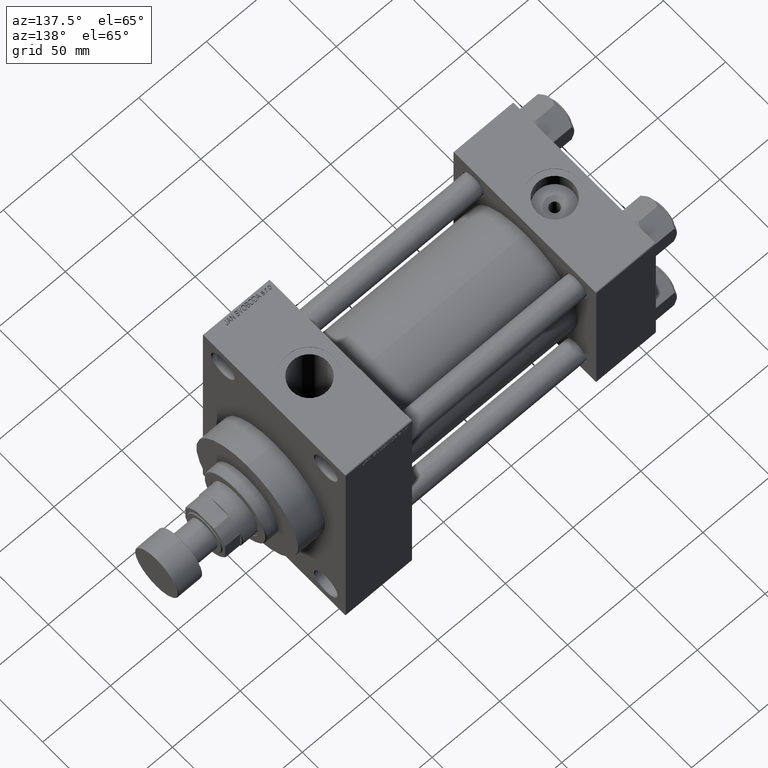
[diagram: clean part render]
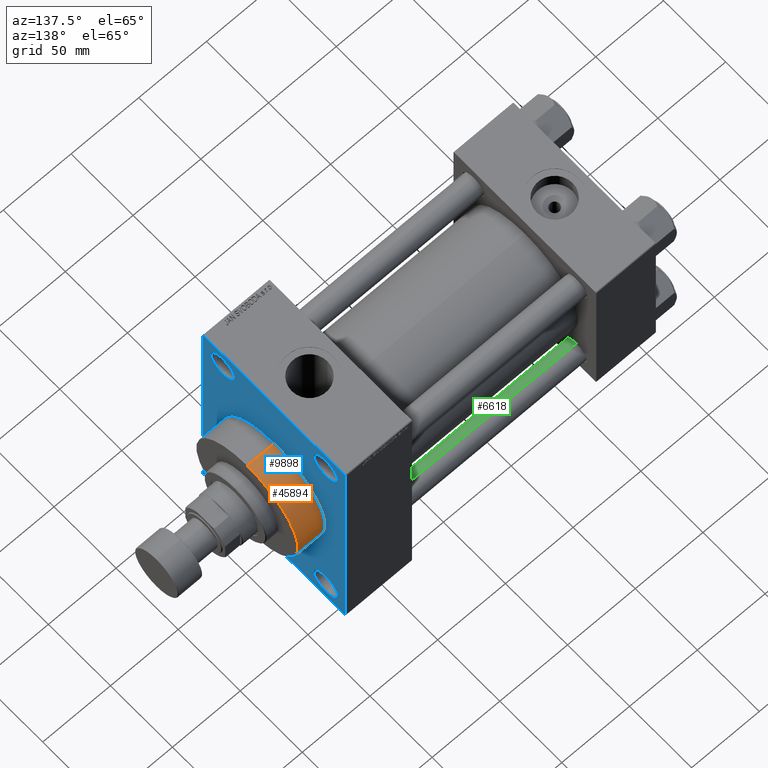
[diagram: same view with three faces highlighted in distinct colors, each labeled with its STEP entity id]
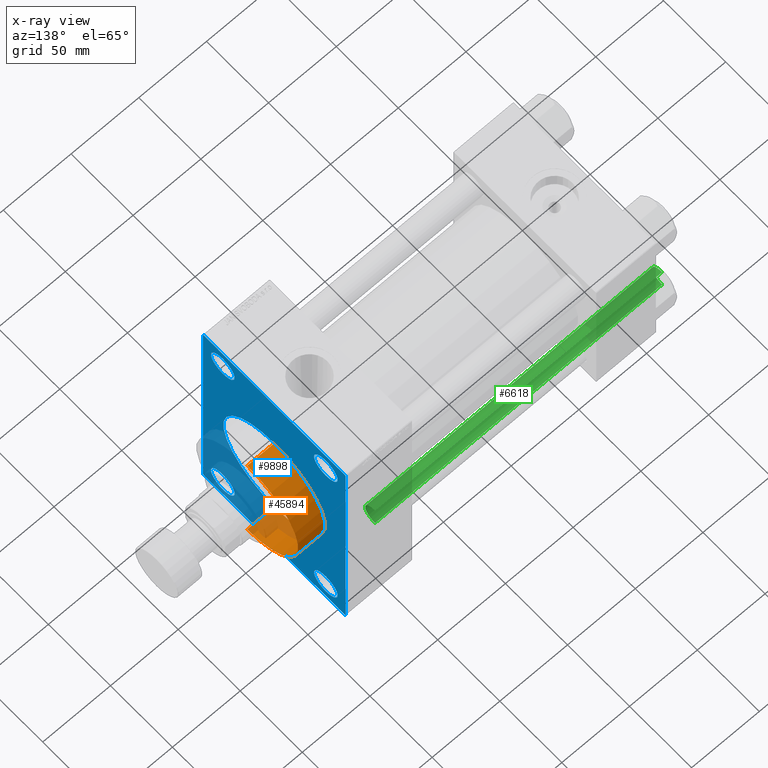
[diagram: x-ray of the same camera — body ghosted, the three highlighted faces saturated]
A machine part, auxiliary view with three faces highlighted in distinct colors.
The next image is the same camera in x-ray (body ghosted, the three faces saturated) — at least one of them is partly hidden behind the body in this view.
Their STEP definitions:

[orange] entity #45894 — the highlighted cylindrical surface (partial cylindrical patch) has radius 41 mm, axis along (-1, -0, -0).
#199 = VECTOR ( 'NONE', #15212, 1000.000000000000000 ) ;
#1595 = AXIS2_PLACEMENT_3D ( 'NONE', #39026, #12733, #46839 ) ;
#1818 = AXIS2_PLACEMENT_3D ( 'NONE', #34966, #12824, #9890 ) ;
#2254 = ORIENTED_EDGE ( 'NONE', *, *, #35513, .F. ) ;
#3148 = ORIENTED_EDGE ( 'NONE', *, *, #26422, .T. ) ;
#4009 = VERTEX_POINT ( 'NONE', #7565 ) ;
#6081 = VERTEX_POINT ( 'NONE', #21394 ) ;
#7046 = DIRECTION ( 'NONE',  ( 0.000000000000000000, 0.000000000000000000, -1.000000000000000000 ) ) ;
#7565 = CARTESIAN_POINT ( 'NONE',  ( 228.9999999999999716, 5.021051876504148963E-15, -41.00000000000000000 ) ) ;
#9889 = ORIENTED_EDGE ( 'NONE', *, *, #17921, .T. ) ;
#9890 = DIRECTION ( 'NONE',  ( 0.000000000000000000, 0.000000000000000000, 1.000000000000000000 ) ) ;
#12733 = DIRECTION ( 'NONE',  ( 1.000000000000000000, 0.000000000000000000, 0.000000000000000000 ) ) ;
#12824 = DIRECTION ( 'NONE',  ( -1.000000000000000000, -0.000000000000000000, -0.000000000000000000 ) ) ;
#13121 = LINE ( 'NONE', #42328, #45103 ) ;
#14847 = CARTESIAN_POINT ( 'NONE',  ( 248.9999999999999716, 0.000000000000000000, 41.00000000000000000 ) ) ;
#14925 = VERTEX_POINT ( 'NONE', #14847 ) ;
#15060 = CARTESIAN_POINT ( 'NONE',  ( 248.9999999999999716, 0.000000000000000000, 0.000000000000000000 ) ) ;
#15212 = DIRECTION ( 'NONE',  ( -1.000000000000000000, -0.000000000000000000, -0.000000000000000000 ) ) ;
#16761 = CARTESIAN_POINT ( 'NONE',  ( 248.9999999999999716, 5.021051876504148963E-15, -41.00000000000000000 ) ) ;
#16982 = VERTEX_POINT ( 'NONE', #16761 ) ;
#17921 = EDGE_CURVE ( 'NONE', #4009, #6081, #18669, .T. ) ;
#18669 = CIRCLE ( 'NONE', #1595, 41.00000000000000000 ) ;
#20836 = EDGE_CURVE ( 'NONE', #16982, #14925, #33535, .T. ) ;
#21394 = CARTESIAN_POINT ( 'NONE',  ( 228.9999999999999716, 0.000000000000000000, 41.00000000000000000 ) ) ;
#23580 = DIRECTION ( 'NONE',  ( -1.000000000000000000, -0.000000000000000000, -0.000000000000000000 ) ) ;
#26166 = CARTESIAN_POINT ( 'NONE',  ( 248.9999999999999716, 5.021051876504148963E-15, -41.00000000000000000 ) ) ;
#26422 = EDGE_CURVE ( 'NONE', #16982, #4009, #40784, .T. ) ;
#26496 = DIRECTION ( 'NONE',  ( 1.000000000000000000, 0.000000000000000000, 0.000000000000000000 ) ) ;
#27204 = AXIS2_PLACEMENT_3D ( 'NONE', #15060, #26496, #7046 ) ;
#33231 = ORIENTED_EDGE ( 'NONE', *, *, #20836, .F. ) ;
#33535 = CIRCLE ( 'NONE', #27204, 41.00000000000000000 ) ;
#34966 = CARTESIAN_POINT ( 'NONE',  ( 248.9999999999999716, 0.000000000000000000, 0.000000000000000000 ) ) ;
#35513 = EDGE_CURVE ( 'NONE', #14925, #6081, #13121, .T. ) ;
#39026 = CARTESIAN_POINT ( 'NONE',  ( 228.9999999999999716, 0.000000000000000000, 0.000000000000000000 ) ) ;
#39117 = EDGE_LOOP ( 'NONE', ( #33231, #3148, #9889, #2254 ) ) ;
#39360 = FACE_OUTER_BOUND ( 'NONE', #39117, .T. ) ;
#40784 = LINE ( 'NONE', #26166, #199 ) ;
#42270 = CYLINDRICAL_SURFACE ( 'NONE', #1818, 41.00000000000000000 ) ;
#42328 = CARTESIAN_POINT ( 'NONE',  ( 248.9999999999999716, 0.000000000000000000, 41.00000000000000000 ) ) ;
#45103 = VECTOR ( 'NONE', #23580, 1000.000000000000000 ) ;
#45894 = ADVANCED_FACE ( 'NONE', ( #39360 ), #42270, .T. ) ;
#46839 = DIRECTION ( 'NONE',  ( 0.000000000000000000, 0.000000000000000000, -1.000000000000000000 ) ) ;

[blue] entity #9898 — the highlighted planar face has unit normal (-1, 0, 0).
#456 = ORIENTED_EDGE ( 'NONE', *, *, #38012, .T. ) ;
#1120 = EDGE_LOOP ( 'NONE', ( #3333, #45840 ) ) ;
#1579 = VERTEX_POINT ( 'NONE', #36980 ) ;
#1595 = AXIS2_PLACEMENT_3D ( 'NONE', #39026, #12733, #46839 ) ;
#1923 = LINE ( 'NONE', #10110, #23322 ) ;
#1997 = AXIS2_PLACEMENT_3D ( 'NONE', #20236, #19755, #23884 ) ;
#2190 = ORIENTED_EDGE ( 'NONE', *, *, #40359, .T. ) ;
#2481 = VECTOR ( 'NONE', #18419, 1000.000000000000000 ) ;
#2783 = CARTESIAN_POINT ( 'NONE',  ( 228.9999999999999716, 57.50000000000000000, 89.50000000000002842 ) ) ;
#3032 = CIRCLE ( 'NONE', #37222, 9.499999999999953815 ) ;
#3323 = CARTESIAN_POINT ( 'NONE',  ( 228.9999999999999716, -41.50000000000000711, 74.50000000000001421 ) ) ;
#3333 = ORIENTED_EDGE ( 'NONE', *, *, #15007, .T. ) ;
#3632 = EDGE_CURVE ( 'NONE', #22863, #47982, #22949, .T. ) ;
#3684 = VERTEX_POINT ( 'NONE', #23161 ) ;
#3966 = VECTOR ( 'NONE', #6955, 1000.000000000000114 ) ;
#4009 = VERTEX_POINT ( 'NONE', #7565 ) ;
#4130 = CARTESIAN_POINT ( 'NONE',  ( 228.9999999999999716, 41.49999999999999289, 83.99999999999995737 ) ) ;
#4686 = DIRECTION ( 'NONE',  ( 0.000000000000000000, 0.000000000000000000, -1.000000000000000000 ) ) ;
#4700 = ORIENTED_EDGE ( 'NONE', *, *, #21293, .T. ) ;
#4888 = ORIENTED_EDGE ( 'NONE', *, *, #36056, .T. ) ;
#5020 = CARTESIAN_POINT ( 'NONE',  ( 228.9999999999999716, -41.50000000000000711, 83.99999999999995737 ) ) ;
#5737 = EDGE_CURVE ( 'NONE', #24278, #23710, #47927, .T. ) ;
#6081 = VERTEX_POINT ( 'NONE', #21394 ) ;
#6550 = EDGE_CURVE ( 'NONE', #28653, #9287, #16978, .T. ) ;
#6780 = CARTESIAN_POINT ( 'NONE',  ( 228.9999999999999716, 41.49999999999999289, 74.50000000000001421 ) ) ;
#6843 = EDGE_LOOP ( 'NONE', ( #456, #7382 ) ) ;
#6955 = DIRECTION ( 'NONE',  ( 0.000000000000000000, 0.7071067811865474617, -0.7071067811865474617 ) ) ;
#7382 = ORIENTED_EDGE ( 'NONE', *, *, #5737, .T. ) ;
#7565 = CARTESIAN_POINT ( 'NONE',  ( 228.9999999999999716, 5.021051876504148963E-15, -41.00000000000000000 ) ) ;
#7900 = DIRECTION ( 'NONE',  ( -1.000000000000000000, -0.000000000000000000, -0.000000000000000000 ) ) ;
#9007 = ORIENTED_EDGE ( 'NONE', *, *, #44466, .T. ) ;
#9228 = PLANE ( 'NONE',  #39410 ) ;
#9287 = VERTEX_POINT ( 'NONE', #22758 ) ;
#9340 = CARTESIAN_POINT ( 'NONE',  ( 228.9999999999999716, -57.50000000000000000, 89.50000000000000000 ) ) ;
#9487 = FACE_BOUND ( 'NONE', #6843, .T. ) ;
#9579 = EDGE_CURVE ( 'NONE', #47982, #22863, #34693, .T. ) ;
#9887 = AXIS2_PLACEMENT_3D ( 'NONE', #47351, #25173, #20799 ) ;
#9898 = ADVANCED_FACE ( 'NONE', ( #9487, #24577, #43096, #42350, #42849, #42593 ), #9228, .F. ) ;
#9912 = CARTESIAN_POINT ( 'NONE',  ( 228.9999999999999716, 57.50000000000000000, -90.00000000000000000 ) ) ;
#9983 = CARTESIAN_POINT ( 'NONE',  ( 228.9999999999999716, 57.50000000000000000, -89.49999999999994316 ) ) ;
#10110 = CARTESIAN_POINT ( 'NONE',  ( 228.9999999999999716, -57.50000000000000000, 90.00000000000000000 ) ) ;
#10444 = DIRECTION ( 'NONE',  ( -0.000000000000000000, 0.7071067811865474617, 0.7071067811865474617 ) ) ;
#10860 = DIRECTION ( 'NONE',  ( 0.000000000000000000, 0.000000000000000000, 1.000000000000000000 ) ) ;
#11301 = DIRECTION ( 'NONE',  ( 0.000000000000000000, 0.000000000000000000, 1.000000000000000000 ) ) ;
#11639 = EDGE_CURVE ( 'NONE', #46615, #3684, #39442, .T. ) ;
#12733 = DIRECTION ( 'NONE',  ( 1.000000000000000000, 0.000000000000000000, 0.000000000000000000 ) ) ;
#13926 = VERTEX_POINT ( 'NONE', #4130 ) ;
#14438 = VERTEX_POINT ( 'NONE', #2783 ) ;
#15007 = EDGE_CURVE ( 'NONE', #1579, #13926, #3032, .T. ) ;
#15196 = CARTESIAN_POINT ( 'NONE',  ( 228.9999999999999716, -57.00000000000002842, -90.00000000000000000 ) ) ;
#15285 = LINE ( 'NONE', #25525, #20438 ) ;
#16005 = CARTESIAN_POINT ( 'NONE',  ( 228.9999999999999716, -41.50000000000000711, -65.00000000000002842 ) ) ;
#16410 = AXIS2_PLACEMENT_3D ( 'NONE', #44223, #17710, #10860 ) ;
#16661 = ORIENTED_EDGE ( 'NONE', *, *, #11639, .T. ) ;
#16694 = EDGE_CURVE ( 'NONE', #14438, #31823, #38502, .T. ) ;
#16796 = CARTESIAN_POINT ( 'NONE',  ( 228.9999999999999716, 0.000000000000000000, 0.000000000000000000 ) ) ;
#16978 = LINE ( 'NONE', #9912, #23051 ) ;
#17049 = DIRECTION ( 'NONE',  ( 1.000000000000000000, 0.000000000000000000, 0.000000000000000000 ) ) ;
#17213 = AXIS2_PLACEMENT_3D ( 'NONE', #34179, #7900, #18867 ) ;
#17530 = CARTESIAN_POINT ( 'NONE',  ( 228.9999999999999716, -41.50000000000000711, -83.99999999999992895 ) ) ;
#17536 = CARTESIAN_POINT ( 'NONE',  ( 228.9999999999999716, 0.000000000000000000, 0.000000000000000000 ) ) ;
#17710 = DIRECTION ( 'NONE',  ( -1.000000000000000000, -0.000000000000000000, -0.000000000000000000 ) ) ;
#17921 = EDGE_CURVE ( 'NONE', #4009, #6081, #18669, .T. ) ;
#18419 = DIRECTION ( 'NONE',  ( 0.000000000000000000, -1.000000000000000000, 0.000000000000000000 ) ) ;
#18521 = EDGE_CURVE ( 'NONE', #46322, #43797, #1923, .T. ) ;
#18669 = CIRCLE ( 'NONE', #1595, 41.00000000000000000 ) ;
#18867 = DIRECTION ( 'NONE',  ( 0.000000000000000000, 0.000000000000000000, 1.000000000000000000 ) ) ;
#18997 = CARTESIAN_POINT ( 'NONE',  ( 228.9999999999999716, 41.49999999999999289, -83.99999999999992895 ) ) ;
#19396 = VECTOR ( 'NONE', #4686, 1000.000000000000000 ) ;
#19604 = DIRECTION ( 'NONE',  ( 0.000000000000000000, 0.000000000000000000, 1.000000000000000000 ) ) ;
#19755 = DIRECTION ( 'NONE',  ( -1.000000000000000000, -0.000000000000000000, -0.000000000000000000 ) ) ;
#19830 = VERTEX_POINT ( 'NONE', #36170 ) ;
#20013 = CARTESIAN_POINT ( 'NONE',  ( 228.9999999999999716, -41.50000000000000711, -74.49999999999998579 ) ) ;
#20236 = CARTESIAN_POINT ( 'NONE',  ( 228.9999999999999716, -41.50000000000000711, -74.49999999999998579 ) ) ;
#20438 = VECTOR ( 'NONE', #10444, 1000.000000000000114 ) ;
#20453 = DIRECTION ( 'NONE',  ( -1.000000000000000000, 0.000000000000000000, -0.000000000000000000 ) ) ;
#20799 = DIRECTION ( 'NONE',  ( 0.000000000000000000, 0.000000000000000000, 1.000000000000000000 ) ) ;
#21293 = EDGE_CURVE ( 'NONE', #19830, #24519, #36686, .T. ) ;
#21319 = DIRECTION ( 'NONE',  ( 0.000000000000000000, 0.000000000000000000, -1.000000000000000000 ) ) ;
#21394 = CARTESIAN_POINT ( 'NONE',  ( 228.9999999999999716, 0.000000000000000000, 41.00000000000000000 ) ) ;
#21631 = DIRECTION ( 'NONE',  ( 0.000000000000000000, 0.000000000000000000, 1.000000000000000000 ) ) ;
#21975 = CARTESIAN_POINT ( 'NONE',  ( 228.9999999999999716, 57.00000000000000000, -90.00000000000000000 ) ) ;
#22030 = DIRECTION ( 'NONE',  ( -1.000000000000000000, -0.000000000000000000, -0.000000000000000000 ) ) ;
#22502 = ORIENTED_EDGE ( 'NONE', *, *, #6550, .F. ) ;
#22539 = CIRCLE ( 'NONE', #38107, 41.00000000000000000 ) ;
#22758 = CARTESIAN_POINT ( 'NONE',  ( 228.9999999999999716, -57.00000000000002842, -90.00000000000000000 ) ) ;
#22863 = VERTEX_POINT ( 'NONE', #17530 ) ;
#22949 = CIRCLE ( 'NONE', #1997, 9.499999999999953815 ) ;
#23051 = VECTOR ( 'NONE', #47663, 1000.000000000000000 ) ;
#23161 = CARTESIAN_POINT ( 'NONE',  ( 228.9999999999999716, 41.49999999999999289, -65.00000000000002842 ) ) ;
#23226 = EDGE_CURVE ( 'NONE', #3684, #46615, #45950, .T. ) ;
#23322 = VECTOR ( 'NONE', #21319, 1000.000000000000000 ) ;
#23436 = CARTESIAN_POINT ( 'NONE',  ( 228.9999999999999716, -41.50000000000000711, 65.00000000000005684 ) ) ;
#23710 = VERTEX_POINT ( 'NONE', #23436 ) ;
#23884 = DIRECTION ( 'NONE',  ( 0.000000000000000000, 0.000000000000000000, 1.000000000000000000 ) ) ;
#24278 = VERTEX_POINT ( 'NONE', #5020 ) ;
#24519 = VERTEX_POINT ( 'NONE', #29102 ) ;
#24577 = FACE_BOUND ( 'NONE', #34586, .T. ) ;
#24632 = DIRECTION ( 'NONE',  ( 0.000000000000000000, 0.000000000000000000, 1.000000000000000000 ) ) ;
#24876 = AXIS2_PLACEMENT_3D ( 'NONE', #38096, #44694, #19604 ) ;
#25173 = DIRECTION ( 'NONE',  ( -1.000000000000000000, -0.000000000000000000, -0.000000000000000000 ) ) ;
#25525 = CARTESIAN_POINT ( 'NONE',  ( 228.9999999999999716, 57.50000000000000000, -89.50000000000000000 ) ) ;
#25916 = LINE ( 'NONE', #15196, #3966 ) ;
#26140 = AXIS2_PLACEMENT_3D ( 'NONE', #20013, #46073, #24632 ) ;
#26432 = CARTESIAN_POINT ( 'NONE',  ( 228.9999999999999716, 57.50000000000000000, 90.00000000000000000 ) ) ;
#26524 = EDGE_LOOP ( 'NONE', ( #16661, #35030 ) ) ;
#27184 = CIRCLE ( 'NONE', #24876, 9.499999999999953815 ) ;
#28653 = VERTEX_POINT ( 'NONE', #21975 ) ;
#29102 = CARTESIAN_POINT ( 'NONE',  ( 228.9999999999999716, -57.00000000000000000, 90.00000000000000000 ) ) ;
#31162 = VECTOR ( 'NONE', #31739, 1000.000000000000114 ) ;
#31452 = ORIENTED_EDGE ( 'NONE', *, *, #35494, .T. ) ;
#31650 = DIRECTION ( 'NONE',  ( 0.000000000000000000, 0.000000000000000000, -1.000000000000000000 ) ) ;
#31681 = ORIENTED_EDGE ( 'NONE', *, *, #17921, .F. ) ;
#31739 = DIRECTION ( 'NONE',  ( -0.000000000000000000, -0.7071067811865474617, -0.7071067811865474617 ) ) ;
#31823 = VERTEX_POINT ( 'NONE', #9983 ) ;
#31910 = VECTOR ( 'NONE', #46231, 1000.000000000000114 ) ;
#33243 = ORIENTED_EDGE ( 'NONE', *, *, #3632, .T. ) ;
#34179 = CARTESIAN_POINT ( 'NONE',  ( 228.9999999999999716, 41.49999999999999289, 74.50000000000001421 ) ) ;
#34370 = CARTESIAN_POINT ( 'NONE',  ( 228.9999999999999716, 57.50000000000000000, 90.00000000000000000 ) ) ;
#34550 = ORIENTED_EDGE ( 'NONE', *, *, #38356, .F. ) ;
#34586 = EDGE_LOOP ( 'NONE', ( #33243, #45380 ) ) ;
#34693 = CIRCLE ( 'NONE', #26140, 9.499999999999953815 ) ;
#35030 = ORIENTED_EDGE ( 'NONE', *, *, #23226, .T. ) ;
#35269 = LINE ( 'NONE', #38197, #31910 ) ;
#35294 = DIRECTION ( 'NONE',  ( -0.000000000000000000, 0.000000000000000000, 1.000000000000000000 ) ) ;
#35473 = AXIS2_PLACEMENT_3D ( 'NONE', #3323, #22030, #11301 ) ;
#35494 = EDGE_CURVE ( 'NONE', #14438, #19830, #35269, .T. ) ;
#36056 = EDGE_CURVE ( 'NONE', #43797, #9287, #25916, .T. ) ;
#36170 = CARTESIAN_POINT ( 'NONE',  ( 228.9999999999999716, 57.00000000000002842, 90.00000000000000000 ) ) ;
#36686 = LINE ( 'NONE', #26432, #2481 ) ;
#36980 = CARTESIAN_POINT ( 'NONE',  ( 228.9999999999999716, 41.49999999999999289, 65.00000000000005684 ) ) ;
#37222 = AXIS2_PLACEMENT_3D ( 'NONE', #6780, #40127, #21631 ) ;
#37688 = ORIENTED_EDGE ( 'NONE', *, *, #18521, .T. ) ;
#38012 = EDGE_CURVE ( 'NONE', #23710, #24278, #27184, .T. ) ;
#38096 = CARTESIAN_POINT ( 'NONE',  ( 228.9999999999999716, -41.50000000000000711, 74.50000000000001421 ) ) ;
#38107 = AXIS2_PLACEMENT_3D ( 'NONE', #17536, #17049, #31650 ) ;
#38188 = CIRCLE ( 'NONE', #17213, 9.499999999999953815 ) ;
#38197 = CARTESIAN_POINT ( 'NONE',  ( 228.9999999999999716, 57.00000000000002842, 90.00000000000000000 ) ) ;
#38356 = EDGE_CURVE ( 'NONE', #6081, #4009, #22539, .T. ) ;
#38502 = LINE ( 'NONE', #34370, #19396 ) ;
#39026 = CARTESIAN_POINT ( 'NONE',  ( 228.9999999999999716, 0.000000000000000000, 0.000000000000000000 ) ) ;
#39410 = AXIS2_PLACEMENT_3D ( 'NONE', #16796, #20453, #35294 ) ;
#39442 = CIRCLE ( 'NONE', #9887, 9.499999999999953815 ) ;
#40090 = CARTESIAN_POINT ( 'NONE',  ( 228.9999999999999716, -57.50000000000000000, -89.49999999999997158 ) ) ;
#40127 = DIRECTION ( 'NONE',  ( -1.000000000000000000, -0.000000000000000000, -0.000000000000000000 ) ) ;
#40280 = EDGE_CURVE ( 'NONE', #13926, #1579, #38188, .T. ) ;
#40359 = EDGE_CURVE ( 'NONE', #24519, #46322, #46119, .T. ) ;
#41654 = ORIENTED_EDGE ( 'NONE', *, *, #16694, .F. ) ;
#42350 = FACE_BOUND ( 'NONE', #1120, .T. ) ;
#42593 = FACE_OUTER_BOUND ( 'NONE', #43020, .T. ) ;
#42849 = FACE_BOUND ( 'NONE', #43086, .T. ) ;
#43020 = EDGE_LOOP ( 'NONE', ( #37688, #4888, #22502, #9007, #41654, #31452, #4700, #2190 ) ) ;
#43086 = EDGE_LOOP ( 'NONE', ( #34550, #31681 ) ) ;
#43096 = FACE_BOUND ( 'NONE', #26524, .T. ) ;
#43797 = VERTEX_POINT ( 'NONE', #40090 ) ;
#44223 = CARTESIAN_POINT ( 'NONE',  ( 228.9999999999999716, 41.49999999999999289, -74.49999999999998579 ) ) ;
#44466 = EDGE_CURVE ( 'NONE', #28653, #31823, #15285, .T. ) ;
#44694 = DIRECTION ( 'NONE',  ( -1.000000000000000000, -0.000000000000000000, -0.000000000000000000 ) ) ;
#45096 = CARTESIAN_POINT ( 'NONE',  ( 228.9999999999999716, -57.50000000000000000, 89.50000000000000000 ) ) ;
#45380 = ORIENTED_EDGE ( 'NONE', *, *, #9579, .T. ) ;
#45840 = ORIENTED_EDGE ( 'NONE', *, *, #40280, .T. ) ;
#45950 = CIRCLE ( 'NONE', #16410, 9.499999999999953815 ) ;
#46073 = DIRECTION ( 'NONE',  ( -1.000000000000000000, -0.000000000000000000, -0.000000000000000000 ) ) ;
#46119 = LINE ( 'NONE', #9340, #31162 ) ;
#46231 = DIRECTION ( 'NONE',  ( 0.000000000000000000, -0.7071067811865474617, 0.7071067811865474617 ) ) ;
#46322 = VERTEX_POINT ( 'NONE', #45096 ) ;
#46615 = VERTEX_POINT ( 'NONE', #18997 ) ;
#46839 = DIRECTION ( 'NONE',  ( 0.000000000000000000, 0.000000000000000000, -1.000000000000000000 ) ) ;
#47351 = CARTESIAN_POINT ( 'NONE',  ( 228.9999999999999716, 41.49999999999999289, -74.49999999999998579 ) ) ;
#47663 = DIRECTION ( 'NONE',  ( 0.000000000000000000, -1.000000000000000000, 0.000000000000000000 ) ) ;
#47927 = CIRCLE ( 'NONE', #35473, 9.499999999999953815 ) ;
#47982 = VERTEX_POINT ( 'NONE', #16005 ) ;

[green] entity #6618 — the highlighted cylindrical surface (edge-blend (fillet) strip) has radius 8 mm, axis along (-1, -0, 0).
#900 = ORIENTED_EDGE ( 'NONE', *, *, #22371, .F. ) ;
#4291 = CYLINDRICAL_SURFACE ( 'NONE', #38590, 8.000000000000000000 ) ;
#4627 = DIRECTION ( 'NONE',  ( 1.000000000000000000, 0.000000000000000000, 0.000000000000000000 ) ) ;
#4749 = ORIENTED_EDGE ( 'NONE', *, *, #6937, .T. ) ;
#6618 = ADVANCED_FACE ( 'NONE', ( #33485 ), #4291, .T. ) ;
#6937 = EDGE_CURVE ( 'NONE', #40852, #17736, #16067, .T. ) ;
#7438 = CARTESIAN_POINT ( 'NONE',  ( 0.000000000000000000, 0.000000000000000000, 213.0000000000000000 ) ) ;
#7979 = CARTESIAN_POINT ( 'NONE',  ( -8.000000000000000000, 0.000000000000000000, 0.4999999999999726885 ) ) ;
#7985 = VERTEX_POINT ( 'NONE', #34398 ) ;
#11565 = ORIENTED_EDGE ( 'NONE', *, *, #29941, .T. ) ;
#14747 = DIRECTION ( 'NONE',  ( -1.000000000000000000, 0.000000000000000000, 0.000000000000000000 ) ) ;
#15112 = CARTESIAN_POINT ( 'NONE',  ( 0.000000000000000000, 0.000000000000000000, 212.5000000000000284 ) ) ;
#15578 = CARTESIAN_POINT ( 'NONE',  ( 8.000000000000000000, 9.797174393178825657E-16, 212.5000000000000284 ) ) ;
#15834 = DIRECTION ( 'NONE',  ( 0.000000000000000000, 0.000000000000000000, -1.000000000000000000 ) ) ;
#16067 = CIRCLE ( 'NONE', #31615, 8.000000000000000000 ) ;
#17736 = VERTEX_POINT ( 'NONE', #30974 ) ;
#19549 = LINE ( 'NONE', #34397, #38935 ) ;
#19603 = ORIENTED_EDGE ( 'NONE', *, *, #23669, .T. ) ;
#22371 = EDGE_CURVE ( 'NONE', #40852, #7985, #26325, .T. ) ;
#22649 = DIRECTION ( 'NONE',  ( 1.000000000000000000, 0.000000000000000000, 0.000000000000000000 ) ) ;
#23111 = CARTESIAN_POINT ( 'NONE',  ( 0.000000000000000000, 0.000000000000000000, 0.4999999999999726885 ) ) ;
#23669 = EDGE_CURVE ( 'NONE', #17736, #42022, #19549, .T. ) ;
#25851 = CARTESIAN_POINT ( 'NONE',  ( 8.000000000000000000, 9.797174393178825657E-16, 213.0000000000000000 ) ) ;
#26325 = LINE ( 'NONE', #25851, #38120 ) ;
#28842 = EDGE_LOOP ( 'NONE', ( #900, #4749, #19603, #11565 ) ) ;
#29941 = EDGE_CURVE ( 'NONE', #42022, #7985, #37683, .T. ) ;
#30974 = CARTESIAN_POINT ( 'NONE',  ( -8.000000000000000000, 0.000000000000000000, 212.5000000000000284 ) ) ;
#31615 = AXIS2_PLACEMENT_3D ( 'NONE', #15112, #15834, #22649 ) ;
#33485 = FACE_OUTER_BOUND ( 'NONE', #28842, .T. ) ;
#34397 = CARTESIAN_POINT ( 'NONE',  ( -8.000000000000000000, 0.000000000000000000, 213.0000000000000000 ) ) ;
#34398 = CARTESIAN_POINT ( 'NONE',  ( 8.000000000000000000, 9.797174393178825657E-16, 0.4999999999999726885 ) ) ;
#37683 = CIRCLE ( 'NONE', #42346, 8.000000000000000000 ) ;
#37950 = DIRECTION ( 'NONE',  ( -0.000000000000000000, -0.000000000000000000, 1.000000000000000000 ) ) ;
#38120 = VECTOR ( 'NONE', #40702, 1000.000000000000000 ) ;
#38590 = AXIS2_PLACEMENT_3D ( 'NONE', #7438, #44692, #14747 ) ;
#38935 = VECTOR ( 'NONE', #45125, 1000.000000000000000 ) ;
#40702 = DIRECTION ( 'NONE',  ( -0.000000000000000000, -0.000000000000000000, -1.000000000000000000 ) ) ;
#40852 = VERTEX_POINT ( 'NONE', #15578 ) ;
#42022 = VERTEX_POINT ( 'NONE', #7979 ) ;
#42346 = AXIS2_PLACEMENT_3D ( 'NONE', #23111, #37950, #4627 ) ;
#44692 = DIRECTION ( 'NONE',  ( -0.000000000000000000, -0.000000000000000000, -1.000000000000000000 ) ) ;
#45125 = DIRECTION ( 'NONE',  ( -0.000000000000000000, -0.000000000000000000, -1.000000000000000000 ) ) ;